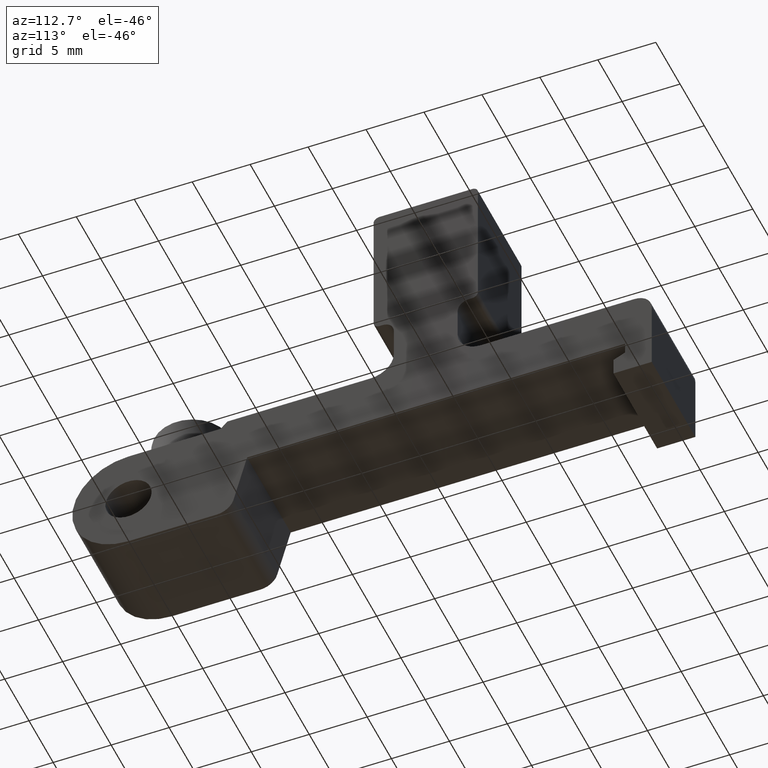
[diagram: clean part render]
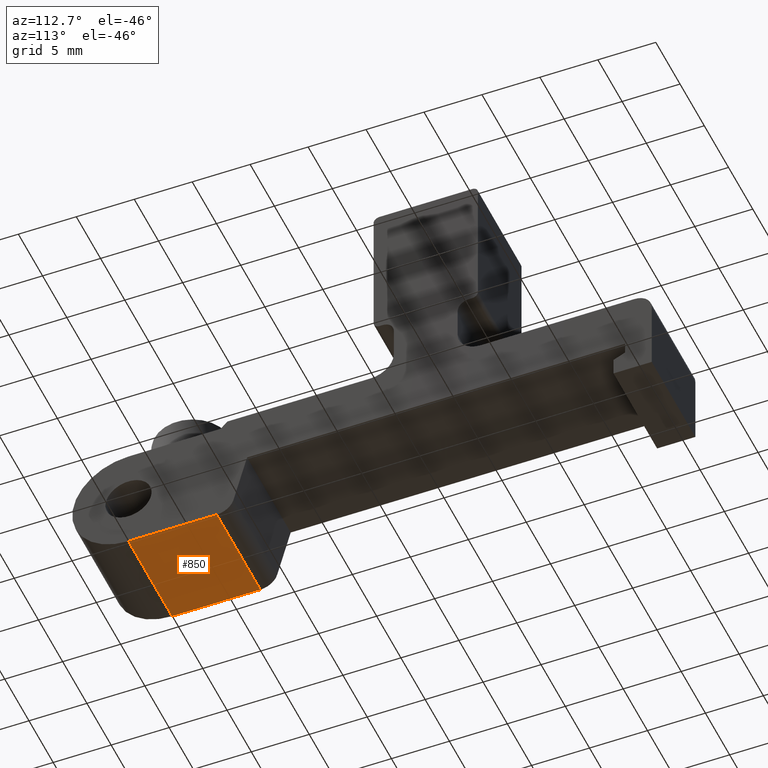
[diagram: same view with one face highlighted and labeled with its STEP entity id]
A machine part, auxiliary view. The second image highlights one B-rep face of the part: STEP entity #850.
In plain terms, the highlighted planar face has unit normal (0, 0, -1).
Its self-contained STEP definition (entity closure, byte-faithful):
#37=PLANE('',#948);
#115=FACE_OUTER_BOUND('',#161,.T.);
#161=EDGE_LOOP('',(#690,#691,#692,#693));
#200=LINE('',#1273,#278);
#229=LINE('',#1390,#307);
#230=LINE('',#1392,#308);
#231=LINE('',#1393,#309);
#278=VECTOR('',#1012,10.);
#307=VECTOR('',#1137,10.);
#308=VECTOR('',#1138,10.);
#309=VECTOR('',#1139,10.);
#397=VERTEX_POINT('',#1270);
#398=VERTEX_POINT('',#1272);
#438=VERTEX_POINT('',#1389);
#439=VERTEX_POINT('',#1391);
#478=EDGE_CURVE('',#397,#398,#200,.T.);
#535=EDGE_CURVE('',#397,#438,#229,.T.);
#536=EDGE_CURVE('',#439,#438,#230,.T.);
#537=EDGE_CURVE('',#398,#439,#231,.T.);
#690=ORIENTED_EDGE('',*,*,#535,.T.);
#691=ORIENTED_EDGE('',*,*,#536,.F.);
#692=ORIENTED_EDGE('',*,*,#537,.F.);
#693=ORIENTED_EDGE('',*,*,#478,.F.);
#850=ADVANCED_FACE('',(#115),#37,.T.);
#948=AXIS2_PLACEMENT_3D('',#1388,#1135,#1136);
#1012=DIRECTION('',(0.,-1.,-6.56274335049992E-16));
#1135=DIRECTION('center_axis',(0.,6.56274335049992E-16,-1.));
#1136=DIRECTION('ref_axis',(0.,1.,6.56274335049992E-16));
#1137=DIRECTION('',(1.,0.,0.));
#1138=DIRECTION('',(0.,1.,6.56274335049992E-16));
#1139=DIRECTION('',(1.,0.,0.));
#1270=CARTESIAN_POINT('',(-4.5,-17.7373244099472,-4.85));
#1272=CARTESIAN_POINT('',(-4.5,-25.35,-4.85));
#1273=CARTESIAN_POINT('',(-4.5,-25.35,-4.85));
#1388=CARTESIAN_POINT('Origin',(0.,-25.35,-4.85));
#1389=CARTESIAN_POINT('',(4.5,-17.7373244099472,-4.85));
#1390=CARTESIAN_POINT('',(0.,-17.7373244099472,-4.85));
#1391=CARTESIAN_POINT('',(4.5,-25.35,-4.85));
#1392=CARTESIAN_POINT('',(4.5,-25.35,-4.85));
#1393=CARTESIAN_POINT('',(0.,-25.35,-4.85));